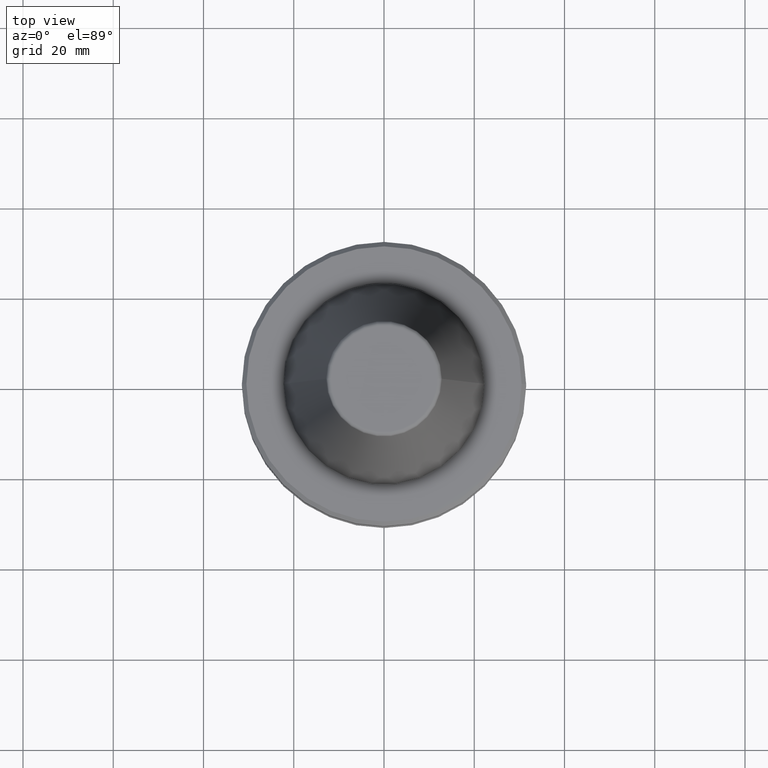
[diagram: clean part render]
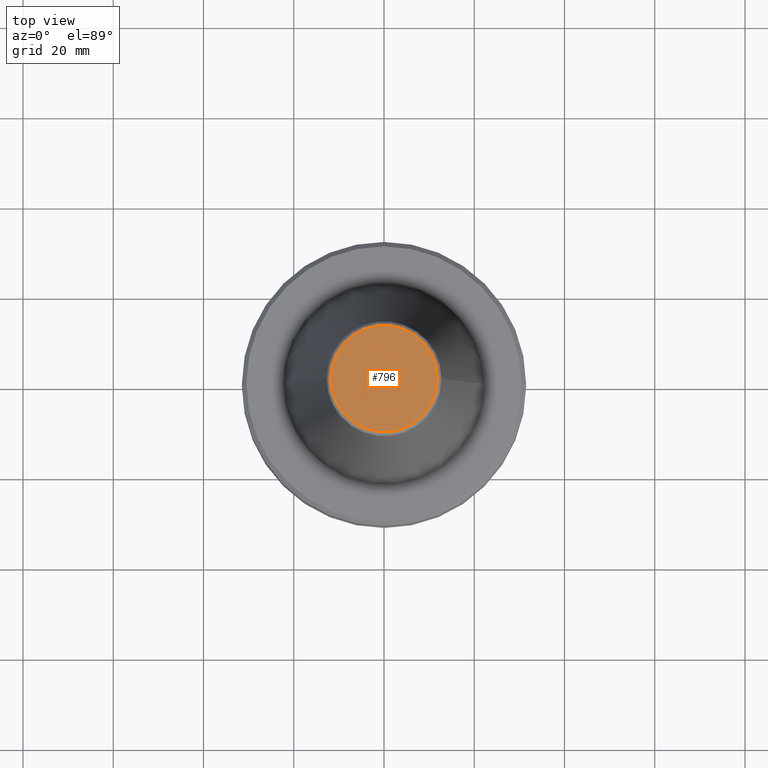
[diagram: same view with one face highlighted and labeled with its STEP entity id]
A machine part, top view. The second image highlights one B-rep face of the part: STEP entity #796.
In plain terms, the highlighted planar face has unit normal (0, 0, -1).
Its self-contained STEP definition (entity closure, byte-faithful):
#81 = EDGE_CURVE ( 'NONE', #751, #381, #373, .T. ) ;
#188 = CARTESIAN_POINT ( 'NONE',  ( 0.0000000000000000000, 11.82266927716757400, 65.39999999999979300 ) ) ;
#251 = DIRECTION ( 'NONE',  ( -0.0000000000000000000, -0.0000000000000000000, 1.000000000000000000 ) ) ;
#347 = DIRECTION ( 'NONE',  ( 0.0000000000000000000, 0.0000000000000000000, -1.000000000000000000 ) ) ;
#355 = EDGE_CURVE ( 'NONE', #381, #751, #567, .T. ) ;
#373 = CIRCLE ( 'NONE', #876, 11.82266927716757400 ) ;
#381 = VERTEX_POINT ( 'NONE', #1061 ) ;
#411 = EDGE_LOOP ( 'NONE', ( #440, #904 ) ) ;
#440 = ORIENTED_EDGE ( 'NONE', *, *, #355, .T. ) ;
#441 = AXIS2_PLACEMENT_3D ( 'NONE', #546, #1258, #649 ) ;
#492 = AXIS2_PLACEMENT_3D ( 'NONE', #188, #347, #1057 ) ;
#532 = DIRECTION ( 'NONE',  ( 1.000000000000000000, 0.0000000000000000000, 0.0000000000000000000 ) ) ;
#546 = CARTESIAN_POINT ( 'NONE',  ( 0.0000000000000000000, 0.0000000000000000000, 65.39999999999992000 ) ) ;
#567 = CIRCLE ( 'NONE', #441, 11.82266927716757400 ) ;
#649 = DIRECTION ( 'NONE',  ( 1.000000000000000000, 0.0000000000000000000, 0.0000000000000000000 ) ) ;
#692 = CARTESIAN_POINT ( 'NONE',  ( -11.82266927716757400, 1.508450817090266600E-015, 65.39999999999992000 ) ) ;
#751 = VERTEX_POINT ( 'NONE', #692 ) ;
#796 = ADVANCED_FACE ( 'NONE', ( #1161 ), #895, .F. ) ;
#857 = CARTESIAN_POINT ( 'NONE',  ( 0.0000000000000000000, 0.0000000000000000000, 65.39999999999992000 ) ) ;
#876 = AXIS2_PLACEMENT_3D ( 'NONE', #857, #251, #532 ) ;
#895 = PLANE ( 'NONE',  #492 ) ;
#904 = ORIENTED_EDGE ( 'NONE', *, *, #81, .T. ) ;
#1057 = DIRECTION ( 'NONE',  ( -1.000000000000000000, 0.0000000000000000000, -0.0000000000000000000 ) ) ;
#1061 = CARTESIAN_POINT ( 'NONE',  ( 11.82266927716757400, 0.0000000000000000000, 65.39999999999992000 ) ) ;
#1161 = FACE_OUTER_BOUND ( 'NONE', #411, .T. ) ;
#1258 = DIRECTION ( 'NONE',  ( -0.0000000000000000000, -0.0000000000000000000, 1.000000000000000000 ) ) ;